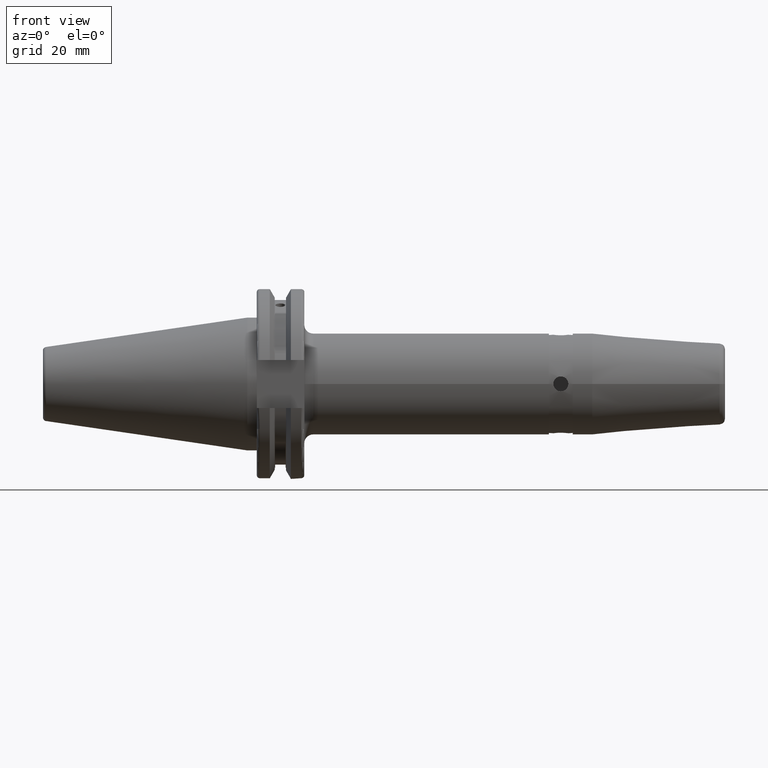
[diagram: clean part render]
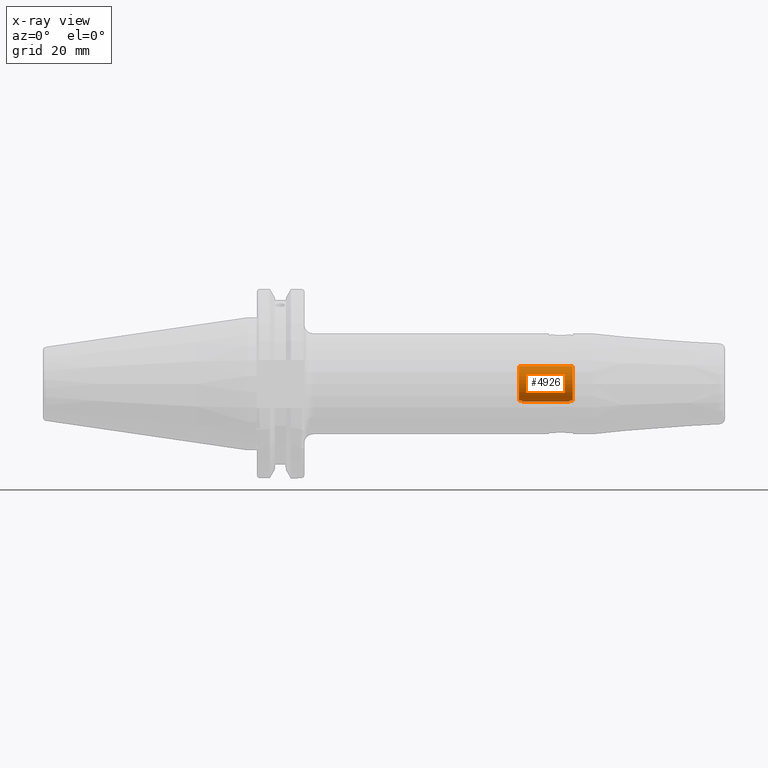
[diagram: x-ray — body ghosted, one internal face saturated and labeled with its STEP entity id]
A machine part, front view, then the same camera in x-ray: the body is ghosted and one INTERNAL B-rep face — a face not visible from any outside direction — is saturated and labeled: STEP entity #4926.
In plain terms, the highlighted cylindrical surface (edge-blend (fillet) strip) has radius 6 mm, axis along (1, 0, -0).
Its self-contained STEP definition (entity closure, byte-faithful):
#2 = DIRECTION ( 'NONE',  ( 1.972152263052529514E-31, -5.551115123125783688E-16, -1.000000000000000000 ) ) ;
#30 = VECTOR ( 'NONE', #3017, 1000.000000000000000 ) ;
#60 = CARTESIAN_POINT ( 'NONE',  ( 5.999999999999998224, 1.761017805379067986E-14, 2.000000000000001776 ) ) ;
#382 = ORIENTED_EDGE ( 'NONE', *, *, #4774, .F. ) ;
#393 = DIRECTION ( 'NONE',  ( 1.972152263052529514E-31, -5.551115123125783688E-16, -1.000000000000000000 ) ) ;
#593 = CARTESIAN_POINT ( 'NONE',  ( 5.916079783099670308, 1.000000000000022871, 17.99999999999998934 ) ) ;
#626 = ORIENTED_EDGE ( 'NONE', *, *, #4449, .T. ) ;
#686 = AXIS2_PLACEMENT_3D ( 'NONE', #2823, #6587, #3360 ) ;
#767 = CARTESIAN_POINT ( 'NONE',  ( -5.916079783099640999, 0.9999999999999937828, 19.99999999999998934 ) ) ;
#907 = CARTESIAN_POINT ( 'NONE',  ( -5.999999999999998224, -5.773159728050705147E-15, 17.99999999999998934 ) ) ;
#957 = ORIENTED_EDGE ( 'NONE', *, *, #4923, .F. ) ;
#1078 = CARTESIAN_POINT ( 'NONE',  ( -1.848892746611746139E-29, 9.992007221626418330E-15, 17.99999999999998934 ) ) ;
#1245 = ORIENTED_EDGE ( 'NONE', *, *, #6135, .T. ) ;
#1270 = DIRECTION ( 'NONE',  ( 1.972152263052529514E-31, -5.551115123125783688E-16, -1.000000000000000000 ) ) ;
#1285 = EDGE_CURVE ( 'NONE', #6685, #3325, #1704, .T. ) ;
#1295 = ORIENTED_EDGE ( 'NONE', *, *, #1285, .T. ) ;
#1381 = EDGE_LOOP ( 'NONE', ( #957, #1695, #4381, #3506, #1295, #626, #6291, #4345, #382, #4782, #3391, #1245 ) ) ;
#1630 = DIRECTION ( 'NONE',  ( 1.000000000000000000, 1.887379141862753103E-15, 0.0000000000000000000 ) ) ;
#1651 = LINE ( 'NONE', #2458, #30 ) ;
#1672 = VERTEX_POINT ( 'NONE', #4586 ) ;
#1695 = ORIENTED_EDGE ( 'NONE', *, *, #6946, .T. ) ;
#1704 = CIRCLE ( 'NONE', #6663, 6.000000000000039968 ) ;
#1829 = CARTESIAN_POINT ( 'NONE',  ( -1.848892746611746139E-29, 9.992007221626418330E-15, 17.99999999999998934 ) ) ;
#1831 = DIRECTION ( 'NONE',  ( 1.972152263052529514E-31, -5.551115123125783688E-16, -1.000000000000000000 ) ) ;
#1861 = CARTESIAN_POINT ( 'NONE',  ( -5.916079783099672973, 1.000000000000006883, 18.99999999999998934 ) ) ;
#1938 = VERTEX_POINT ( 'NONE', #4073 ) ;
#2014 = LINE ( 'NONE', #5426, #6170 ) ;
#2141 = CARTESIAN_POINT ( 'NONE',  ( -1.232595164407831226E-29, 1.110223024625151413E-15, 2.000000000000001776 ) ) ;
#2184 = VERTEX_POINT ( 'NONE', #593 ) ;
#2262 = FACE_OUTER_BOUND ( 'NONE', #1381, .T. ) ;
#2373 = DIRECTION ( 'NONE',  ( 1.000000000000000000, 1.887379141862753103E-15, 0.0000000000000000000 ) ) ;
#2380 = EDGE_CURVE ( 'NONE', #4089, #2986, #2014, .T. ) ;
#2441 = VERTEX_POINT ( 'NONE', #60 ) ;
#2443 = EDGE_CURVE ( 'NONE', #4416, #2441, #3484, .T. ) ;
#2458 = CARTESIAN_POINT ( 'NONE',  ( -5.916079783099640999, 0.9999999999999937828, 19.99999999999998934 ) ) ;
#2488 = DIRECTION ( 'NONE',  ( 1.972152263052529514E-31, -5.551115123125783688E-16, -1.000000000000000000 ) ) ;
#2534 = LINE ( 'NONE', #767, #3804 ) ;
#2717 = DIRECTION ( 'NONE',  ( -1.000000000000000000, -1.887379141862753103E-15, 0.0000000000000000000 ) ) ;
#2823 = CARTESIAN_POINT ( 'NONE',  ( -1.232595164407831226E-29, 1.110223024625151413E-15, 2.000000000000001776 ) ) ;
#2839 = DIRECTION ( 'NONE',  ( 1.972152263052529514E-31, -5.551115123125783688E-16, -1.000000000000000000 ) ) ;
#2908 = AXIS2_PLACEMENT_3D ( 'NONE', #1078, #4885, #1630 ) ;
#2986 = VERTEX_POINT ( 'NONE', #4356 ) ;
#3017 = DIRECTION ( 'NONE',  ( -1.972152263052529514E-31, 5.551115123125783688E-16, 1.000000000000000000 ) ) ;
#3122 = AXIS2_PLACEMENT_3D ( 'NONE', #1829, #5611, #2373 ) ;
#3156 = EDGE_CURVE ( 'NONE', #6173, #3953, #2534, .T. ) ;
#3193 = CARTESIAN_POINT ( 'NONE',  ( -5.916079783099636558, 0.9999999999999835687, 1.000000000000000888 ) ) ;
#3325 = VERTEX_POINT ( 'NONE', #3193 ) ;
#3360 = DIRECTION ( 'NONE',  ( -1.000000000000000000, -1.887379141862753103E-15, 0.0000000000000000000 ) ) ;
#3387 = CYLINDRICAL_SURFACE ( 'NONE', #4194, 6.000000000000039968 ) ;
#3391 = ORIENTED_EDGE ( 'NONE', *, *, #4479, .T. ) ;
#3484 = CIRCLE ( 'NONE', #686, 6.000000000000039968 ) ;
#3506 = ORIENTED_EDGE ( 'NONE', *, *, #5200, .T. ) ;
#3697 = LINE ( 'NONE', #5268, #6381 ) ;
#3795 = LINE ( 'NONE', #3995, #6668 ) ;
#3804 = VECTOR ( 'NONE', #5102, 1000.000000000000000 ) ;
#3953 = VERTEX_POINT ( 'NONE', #1861 ) ;
#3994 = VERTEX_POINT ( 'NONE', #5114 ) ;
#3995 = CARTESIAN_POINT ( 'NONE',  ( 5.916079783099662315, 1.000000000000027311, 19.99999999999998934 ) ) ;
#4073 = CARTESIAN_POINT ( 'NONE',  ( -5.916079783099637446, 0.9999999999999833467, 2.000000000000001776 ) ) ;
#4089 = VERTEX_POINT ( 'NONE', #907 ) ;
#4194 = AXIS2_PLACEMENT_3D ( 'NONE', #4531, #1270, #6664 ) ;
#4244 = VECTOR ( 'NONE', #2839, 1000.000000000000000 ) ;
#4345 = ORIENTED_EDGE ( 'NONE', *, *, #2380, .F. ) ;
#4356 = CARTESIAN_POINT ( 'NONE',  ( -5.999999999999998224, -5.773159728050764312E-15, 2.000000000000001776 ) ) ;
#4381 = ORIENTED_EDGE ( 'NONE', *, *, #2443, .F. ) ;
#4416 = VERTEX_POINT ( 'NONE', #6726 ) ;
#4449 = EDGE_CURVE ( 'NONE', #3325, #1938, #1651, .T. ) ;
#4479 = EDGE_CURVE ( 'NONE', #3953, #3994, #5634, .T. ) ;
#4531 = CARTESIAN_POINT ( 'NONE',  ( 6.162975822039154730E-30, 1.110223024625156225E-14, 19.99999999999998934 ) ) ;
#4586 = CARTESIAN_POINT ( 'NONE',  ( 5.999999999999998224, 1.761017805379073982E-14, 17.99999999999998934 ) ) ;
#4705 = CIRCLE ( 'NONE', #5206, 6.000000000000039968 ) ;
#4729 = CARTESIAN_POINT ( 'NONE',  ( -5.916079783099637446, 0.9999999999999911182, 17.99999999999998934 ) ) ;
#4738 = CARTESIAN_POINT ( 'NONE',  ( 5.916079783099671197, 1.000000000000018652, 1.000000000000028644 ) ) ;
#4774 = EDGE_CURVE ( 'NONE', #6173, #4089, #5879, .T. ) ;
#4782 = ORIENTED_EDGE ( 'NONE', *, *, #3156, .T. ) ;
#4825 = AXIS2_PLACEMENT_3D ( 'NONE', #5707, #2488, #6255 ) ;
#4885 = DIRECTION ( 'NONE',  ( -1.972152263052529514E-31, 5.551115123125783688E-16, 1.000000000000000000 ) ) ;
#4923 = EDGE_CURVE ( 'NONE', #1672, #2184, #5315, .T. ) ;
#4926 = ADVANCED_FACE ( 'NONE', ( #2262 ), #3387, .T. ) ;
#5102 = DIRECTION ( 'NONE',  ( -1.972152263052529514E-31, 5.551115123125783688E-16, 1.000000000000000000 ) ) ;
#5114 = CARTESIAN_POINT ( 'NONE',  ( 5.916079783099660538, 1.000000000000026423, 18.99999999999998934 ) ) ;
#5200 = EDGE_CURVE ( 'NONE', #4416, #6685, #3795, .T. ) ;
#5206 = AXIS2_PLACEMENT_3D ( 'NONE', #2141, #5945, #2717 ) ;
#5268 = CARTESIAN_POINT ( 'NONE',  ( 5.916079783099662315, 1.000000000000027311, 19.99999999999998934 ) ) ;
#5315 = CIRCLE ( 'NONE', #3122, 6.000000000000039968 ) ;
#5426 = CARTESIAN_POINT ( 'NONE',  ( -6.000000000000039968, -2.220446049250315053E-16, 19.99999999999998934 ) ) ;
#5611 = DIRECTION ( 'NONE',  ( -1.972152263052529514E-31, 5.551115123125783688E-16, 1.000000000000000000 ) ) ;
#5634 = CIRCLE ( 'NONE', #4825, 6.000000000000039968 ) ;
#5672 = LINE ( 'NONE', #6582, #4244 ) ;
#5688 = CARTESIAN_POINT ( 'NONE',  ( -2.736911063134408342E-45, 5.551115123125664373E-16, 1.000000000000000888 ) ) ;
#5707 = CARTESIAN_POINT ( 'NONE',  ( -1.232595164407830946E-29, 1.054711873393898398E-14, 18.99999999999998934 ) ) ;
#5712 = DIRECTION ( 'NONE',  ( -1.972152263052529514E-31, 5.551115123125783688E-16, 1.000000000000000000 ) ) ;
#5739 = DIRECTION ( 'NONE',  ( 1.000000000000000000, 1.887379141862753103E-15, 0.0000000000000000000 ) ) ;
#5879 = CIRCLE ( 'NONE', #2908, 6.000000000000039968 ) ;
#5945 = DIRECTION ( 'NONE',  ( 1.972152263052529514E-31, -5.551115123125783688E-16, -1.000000000000000000 ) ) ;
#6135 = EDGE_CURVE ( 'NONE', #3994, #2184, #3697, .T. ) ;
#6170 = VECTOR ( 'NONE', #2, 1000.000000000000000 ) ;
#6173 = VERTEX_POINT ( 'NONE', #4729 ) ;
#6255 = DIRECTION ( 'NONE',  ( 1.000000000000000000, 1.887379141862753103E-15, 0.0000000000000000000 ) ) ;
#6291 = ORIENTED_EDGE ( 'NONE', *, *, #6835, .F. ) ;
#6381 = VECTOR ( 'NONE', #393, 1000.000000000000000 ) ;
#6582 = CARTESIAN_POINT ( 'NONE',  ( 6.000000000000039968, 2.316129317691657301E-14, 19.99999999999998934 ) ) ;
#6587 = DIRECTION ( 'NONE',  ( 1.972152263052529514E-31, -5.551115123125783688E-16, -1.000000000000000000 ) ) ;
#6663 = AXIS2_PLACEMENT_3D ( 'NONE', #5688, #5712, #5739 ) ;
#6664 = DIRECTION ( 'NONE',  ( -1.000000000000000000, -1.887379141862753103E-15, 0.0000000000000000000 ) ) ;
#6668 = VECTOR ( 'NONE', #1831, 1000.000000000000000 ) ;
#6685 = VERTEX_POINT ( 'NONE', #4738 ) ;
#6726 = CARTESIAN_POINT ( 'NONE',  ( 5.916079783099667644, 1.000000000000015099, 2.000000000000001776 ) ) ;
#6835 = EDGE_CURVE ( 'NONE', #2986, #1938, #4705, .T. ) ;
#6946 = EDGE_CURVE ( 'NONE', #1672, #2441, #5672, .T. ) ;